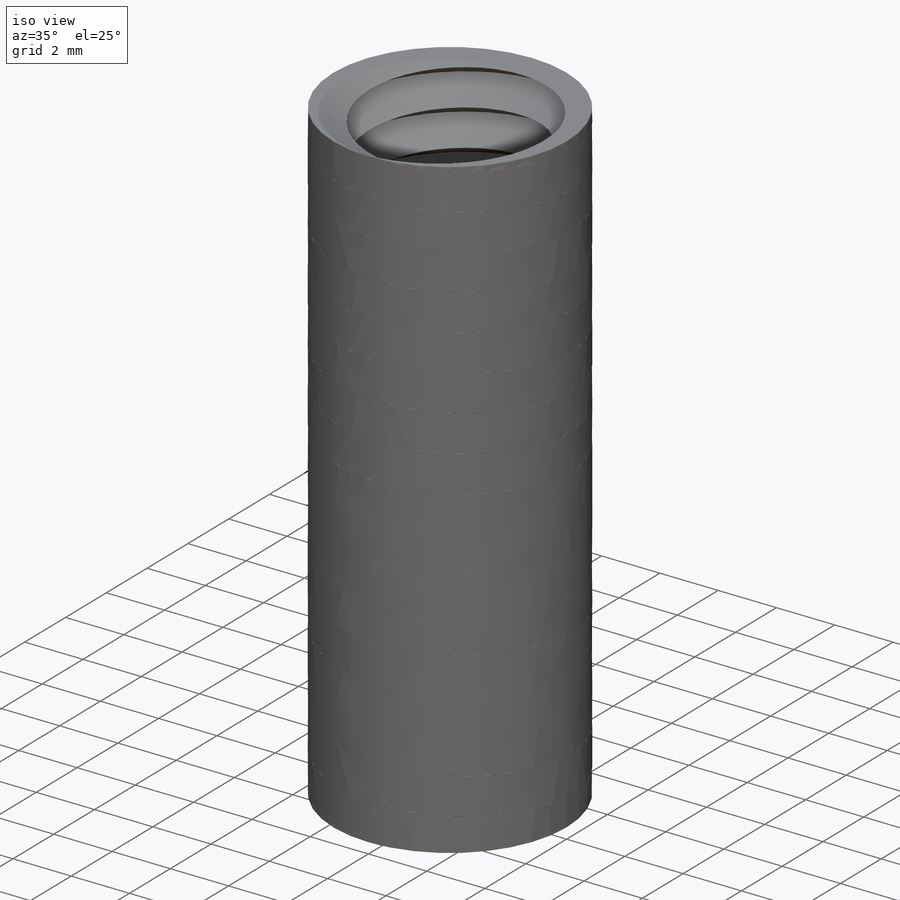
[diagram: iso view]
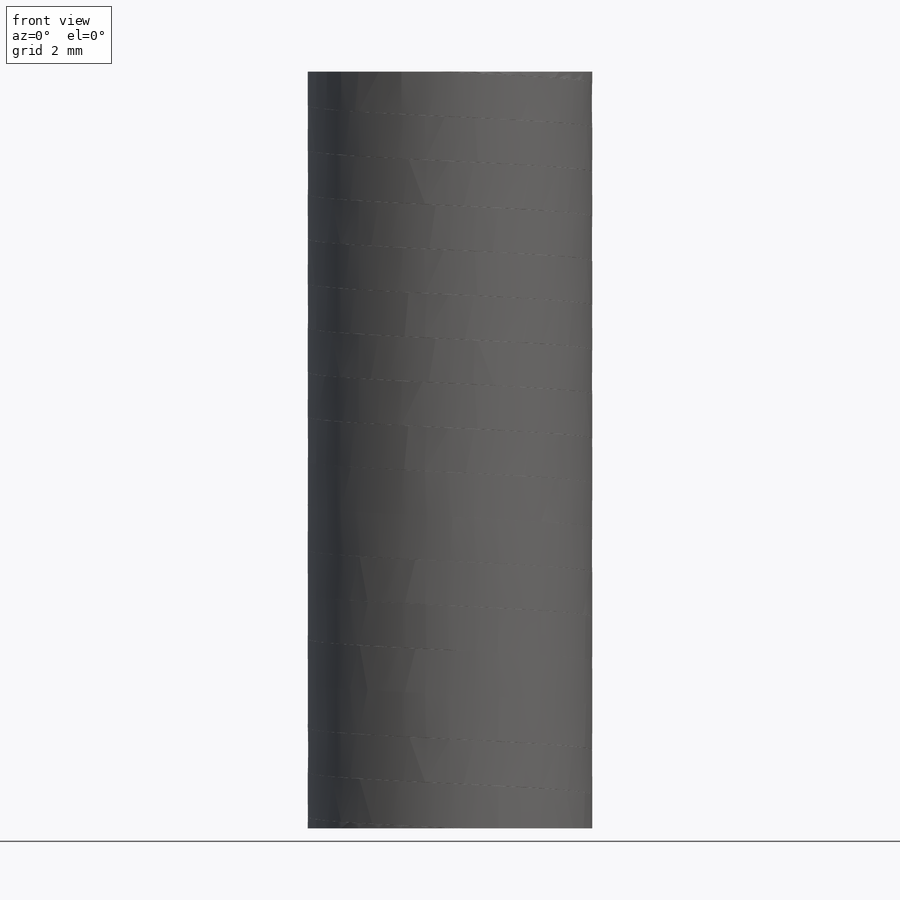
[diagram: front view]
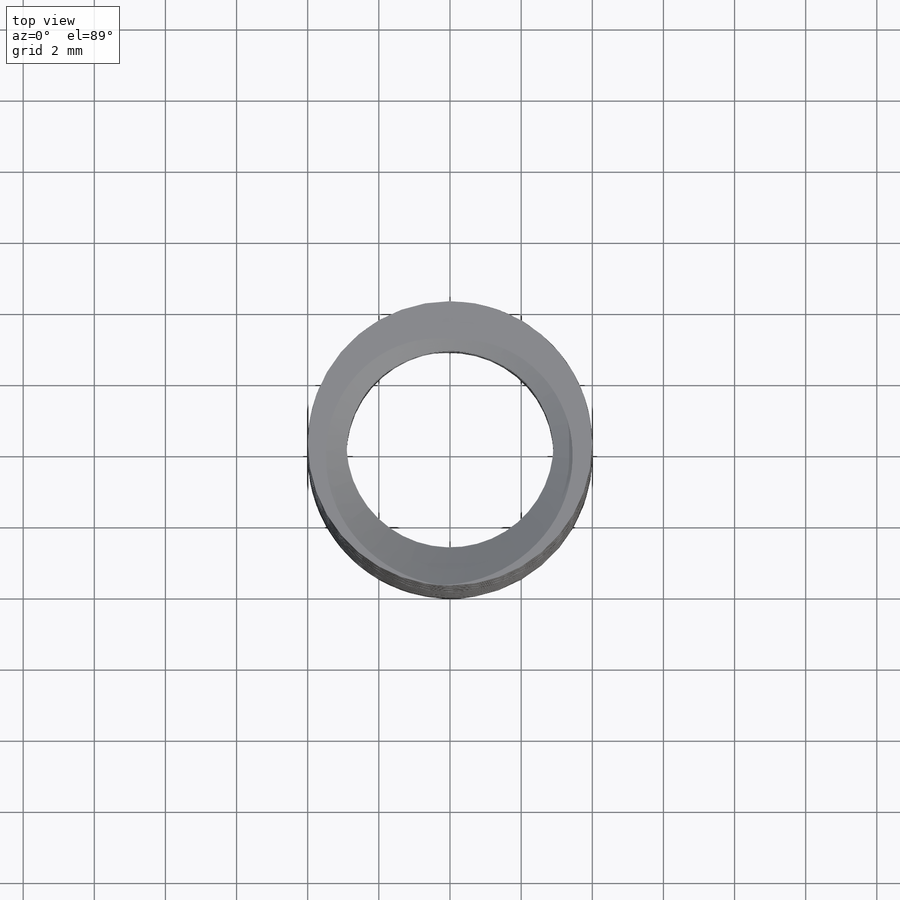
[diagram: top view]
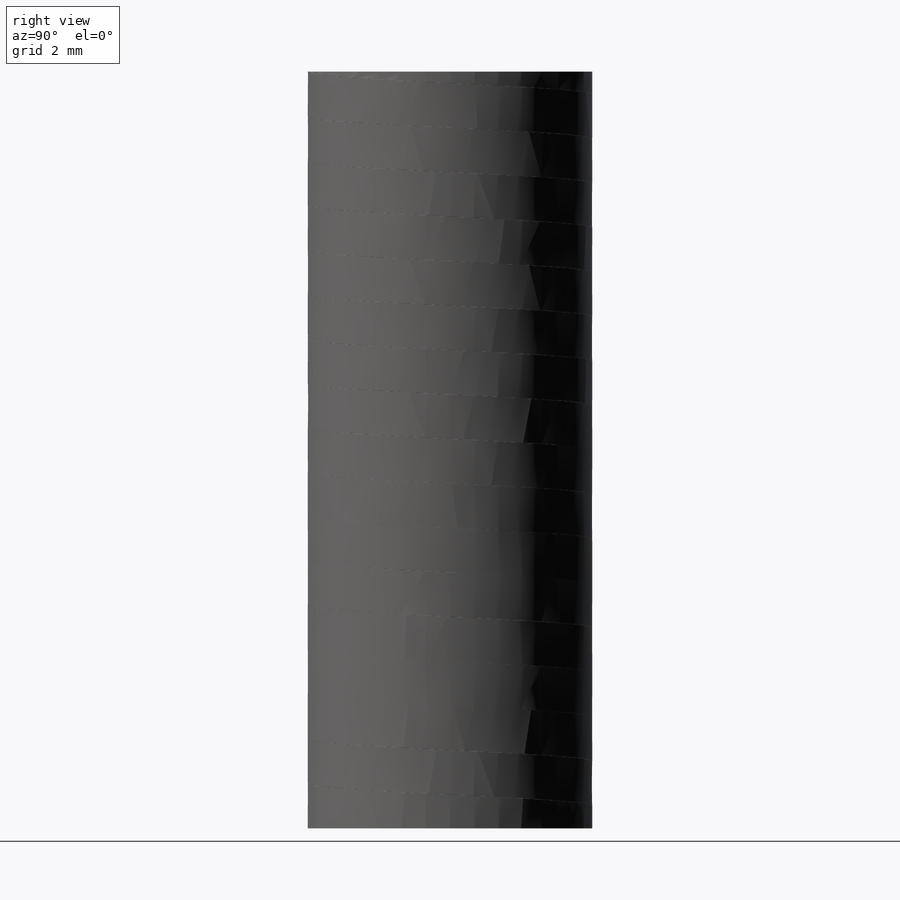
[diagram: right view]
SOLIDWORKS PART (.sldprt)
format: sldprt  version: not decoded by parser v0  size: 618,496 bytes
history: native  units: mm
features: plane x4, sketch x3, material x1, helix x1, sweep x1, cut_extrude x1 (+13 scaffold rows collapsed)
feature tree (24):
  scaffold x13  (default folders/planes/origin — collapsed)
  material  "Материал <не указан>"
  plane  "Спереди"
  plane  "Сверху"
  plane  "Справа"
  sketch  "Эскиз1"  dims[D1=8.0mm]
  helix  "Спираль1"  Pitch=25mm
  sketch  "Эскиз3"  dims[c1.D1=~0.389596mm c2.D1=60.0deg c2.D2=1.0875mm]
  sweep  "По траектории1"
  plane  "Плоскость1"  Offset=10mm
  sketch  "Эскиз4"  dims[D1=5.0mm D2=10.0mm]
  cut_extrude  "Вырез-Вытянуть1"  Depth=22mm
decode coverage: 5 of 6 modeling features carry decoded parameters
note: ~ marks probable driven/reference dimensions
note: suppression state not decoded; provenance and decode notes live in map.json
